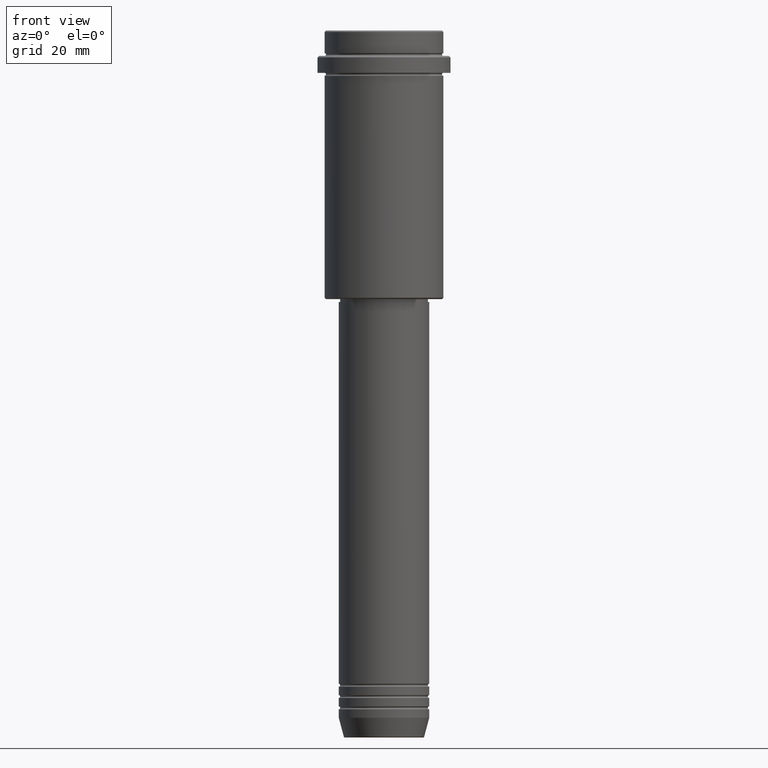
[diagram: clean part render]
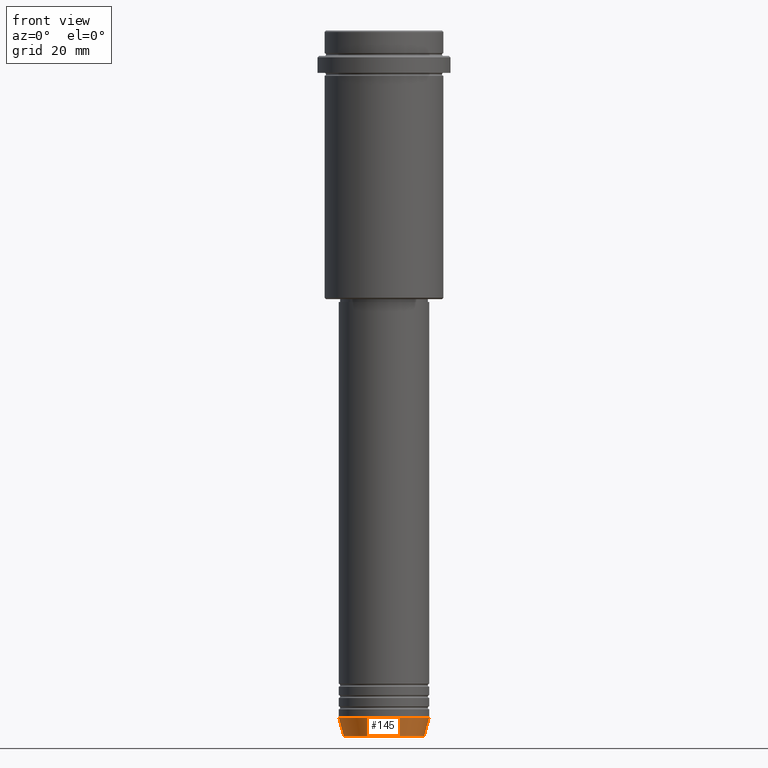
[diagram: same view with one face highlighted and labeled with its STEP entity id]
A machine part, front view. The second image highlights one B-rep face of the part: STEP entity #145.
In plain terms, the highlighted conical surface has half-angle 15 deg.
Its self-contained STEP definition (entity closure, byte-faithful):
#3 = FACE_OUTER_BOUND ( 'NONE', #109, .T. ) ;
#26 = EDGE_CURVE ( 'NONE', #138, #582, #418, .T. ) ;
#27 = VERTEX_POINT ( 'NONE', #238 ) ;
#38 = CONICAL_SURFACE ( 'NONE', #62, 16.00000000000000000, 0.2617993877991500740 ) ;
#48 = DIRECTION ( 'NONE',  ( -0.000000000000000000, -0.000000000000000000, 1.000000000000000000 ) ) ;
#62 = AXIS2_PLACEMENT_3D ( 'NONE', #236, #102, #648 ) ;
#77 = DIRECTION ( 'NONE',  ( -0.2588190451025213501, 3.169619151431772337E-17, 0.9659258262890680902 ) ) ;
#102 = DIRECTION ( 'NONE',  ( -0.000000000000000000, -0.000000000000000000, 1.000000000000000000 ) ) ;
#109 = EDGE_LOOP ( 'NONE', ( #834, #742, #1161, #837 ) ) ;
#110 = DIRECTION ( 'NONE',  ( 0.2588190451025213501, 0.000000000000000000, 0.9659258262890680902 ) ) ;
#138 = VERTEX_POINT ( 'NONE', #868 ) ;
#145 = ADVANCED_FACE ( 'NONE', ( #3 ), #38, .T. ) ;
#174 = CARTESIAN_POINT ( 'NONE',  ( -16.00000000000000000, 1.959434878635765131E-15, -243.0000000000000000 ) ) ;
#176 = CIRCLE ( 'NONE', #883, 16.00000000000000000 ) ;
#236 = CARTESIAN_POINT ( 'NONE',  ( 0.000000000000000000, 0.000000000000000000, -243.0000000000000000 ) ) ;
#238 = CARTESIAN_POINT ( 'NONE',  ( -14.22365507213718239, 1.850665122131322942E-15, -249.6294095225512422 ) ) ;
#273 = DIRECTION ( 'NONE',  ( 1.000000000000000000, 0.000000000000000000, 0.000000000000000000 ) ) ;
#311 = LINE ( 'NONE', #1293, #879 ) ;
#330 = EDGE_CURVE ( 'NONE', #27, #138, #1207, .T. ) ;
#347 = VERTEX_POINT ( 'NONE', #174 ) ;
#418 = LINE ( 'NONE', #1413, #428 ) ;
#428 = VECTOR ( 'NONE', #110, 1000.000000000000000 ) ;
#468 = CARTESIAN_POINT ( 'NONE',  ( 0.000000000000000000, 0.000000000000000000, -243.0000000000000000 ) ) ;
#501 = CARTESIAN_POINT ( 'NONE',  ( 0.000000000000000000, 0.000000000000000000, -249.6294095225512422 ) ) ;
#582 = VERTEX_POINT ( 'NONE', #1106 ) ;
#599 = DIRECTION ( 'NONE',  ( -0.000000000000000000, -0.000000000000000000, 1.000000000000000000 ) ) ;
#648 = DIRECTION ( 'NONE',  ( 1.000000000000000000, 0.000000000000000000, 0.000000000000000000 ) ) ;
#742 = ORIENTED_EDGE ( 'NONE', *, *, #330, .T. ) ;
#834 = ORIENTED_EDGE ( 'NONE', *, *, #856, .F. ) ;
#837 = ORIENTED_EDGE ( 'NONE', *, *, #1179, .F. ) ;
#856 = EDGE_CURVE ( 'NONE', #27, #347, #311, .T. ) ;
#868 = CARTESIAN_POINT ( 'NONE',  ( 14.22365507213718239, 0.000000000000000000, -249.6294095225512422 ) ) ;
#879 = VECTOR ( 'NONE', #77, 1000.000000000000000 ) ;
#883 = AXIS2_PLACEMENT_3D ( 'NONE', #468, #599, #1124 ) ;
#1106 = CARTESIAN_POINT ( 'NONE',  ( 16.00000000000000000, 0.000000000000000000, -243.0000000000000000 ) ) ;
#1124 = DIRECTION ( 'NONE',  ( 1.000000000000000000, 0.000000000000000000, 0.000000000000000000 ) ) ;
#1161 = ORIENTED_EDGE ( 'NONE', *, *, #26, .T. ) ;
#1169 = AXIS2_PLACEMENT_3D ( 'NONE', #501, #48, #273 ) ;
#1179 = EDGE_CURVE ( 'NONE', #347, #582, #176, .T. ) ;
#1207 = CIRCLE ( 'NONE', #1169, 14.22365507213718239 ) ;
#1293 = CARTESIAN_POINT ( 'NONE',  ( -16.00000000000000000, 1.959434878635765131E-15, -243.0000000000000000 ) ) ;
#1413 = CARTESIAN_POINT ( 'NONE',  ( 16.00000000000000000, 0.000000000000000000, -243.0000000000000000 ) ) ;